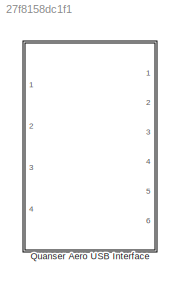
MODEL slx_27f8158dc1f1
KIND library
CONFIG AbsTol = auto
CONFIG EnableMultiTasking = on
CONFIG FixedStep = 0.002
CONFIG MaxStep = auto
CONFIG MinStep = auto
CONFIG RelTol = 1e-3
CONFIG SampleTimeConstraint = Unconstrained
CONFIG Solver = ode1
CONFIG SolverName = ode1
CONFIG StartTime = 0.0
CONFIG StopTime = inf
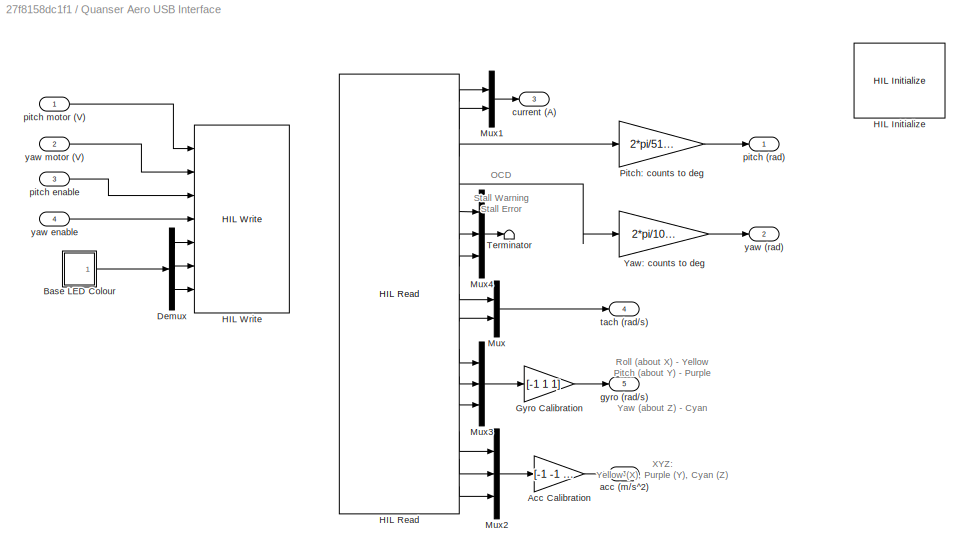
BLOCK [SubSystem] Quanser Aero USB Interface
  Ports = [4, 6]
  RequestExecContextInheritance = off
BLOCK [Gain] Quanser Aero USB Interface/Acc Calibration
  Gain = [-1 -1 1]
  OutDataTypeStr = Inherit: Inherit via internal rule
  ParamDataTypeStr = Inherit: Inherit via internal rule
  SaturateOnIntegerOverflow = off
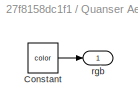
BLOCK [SubSystem] Quanser Aero USB Interface/Base LED Colour
  OpenFcn = color_constant_properties('CurrentBlock', gcbh);
  Ports = [0, 1]
  RequestExecContextInheritance = off
BLOCK [Constant] Quanser Aero USB Interface/Base LED Colour/Constant
  Value = color
BLOCK [Outport] Quanser Aero USB Interface/Base LED Colour/rgb
  IconDisplay = Port number
BLOCK [Demux] Quanser Aero USB Interface/Demux
  DisplayOption = bar
  Outputs = 3
  Ports = [1, 3]
BLOCK [Gain] Quanser Aero USB Interface/Gyro Calibration
  Gain = [-1 1 1]
  OutDataTypeStr = Inherit: Inherit via internal rule
  ParamDataTypeStr = Inherit: Inherit via internal rule
  SaturateOnIntegerOverflow = off
BLOCK [Reference] Quanser Aero USB Interface/HIL Initialize  REF=quarc_library/Data Acquisition/Generic/Configuration/HIL Initialize
  AttributesFormatString = %<object_name> (%<board_type>-%<board_number>)
  Ports = []
  Priority = -99
  SourceBlock = quarc_library/Data Acquisition/Generic/Configuration/HIL Initialize
  SourceType = HIL Initialize
  UserDataPersistent = on
BLOCK [Reference] Quanser Aero USB Interface/HIL Read  REF=quarc_library/Data Acquisition/Generic/Immediate I//O/HIL Read
  AttributesFormatString = (%<object_name>)
  Ports = [0, 15]
  SourceBlock = quarc_library/Data Acquisition/Generic/Immediate I//O/HIL Read
  SourceType = HIL Read
  UserDataPersistent = on
BLOCK [Reference] Quanser Aero USB Interface/HIL Write  REF=quarc_library/Data Acquisition/Generic/Immediate I//O/HIL Write
  AttributesFormatString = (%<object_name>)
  Ports = [7]
  SourceBlock = quarc_library/Data Acquisition/Generic/Immediate I//O/HIL Write
  SourceType = HIL Write
  UserDataPersistent = on
BLOCK [Mux] Quanser Aero USB Interface/Mux
  DisplayOption = bar
  Inputs = 2
  Ports = [2, 1]
BLOCK [Mux] Quanser Aero USB Interface/Mux1
  DisplayOption = bar
  Inputs = 2
  Ports = [2, 1]
BLOCK [Mux] Quanser Aero USB Interface/Mux2
  DisplayOption = bar
  Inputs = 3
  Ports = [3, 1]
BLOCK [Mux] Quanser Aero USB Interface/Mux3
  DisplayOption = bar
  Inputs = 3
  Ports = [3, 1]
BLOCK [Mux] Quanser Aero USB Interface/Mux4
  DisplayOption = bar
  Inputs = 3
  Ports = [3, 1]
BLOCK [Gain] Quanser Aero USB Interface/Pitch: counts to deg
  Gain = 2*pi/512/4
  OutDataTypeStr = Inherit: Inherit via internal rule
  ParamDataTypeStr = Inherit: Inherit via internal rule
  SaturateOnIntegerOverflow = off
BLOCK [Terminator] Quanser Aero USB Interface/Terminator
BLOCK [Gain] Quanser Aero USB Interface/Yaw: counts to deg
  Gain = 2*pi/1024/4
  OutDataTypeStr = Inherit: Inherit via internal rule
  ParamDataTypeStr = Inherit: Inherit via internal rule
  SaturateOnIntegerOverflow = off
BLOCK [Outport] Quanser Aero USB Interface/acc (m//s^2)
  IconDisplay = Port number
  Port = 6
BLOCK [Outport] Quanser Aero USB Interface/current (A)
  IconDisplay = Port number
  Port = 3
BLOCK [Outport] Quanser Aero USB Interface/gyro (rad//s)
  IconDisplay = Port number
  Port = 5
BLOCK [Outport] Quanser Aero USB Interface/pitch (rad)
  IconDisplay = Port number
BLOCK [Inport] Quanser Aero USB Interface/pitch enable
  IconDisplay = Port number
  Port = 3
BLOCK [Inport] Quanser Aero USB Interface/pitch motor (V)
  IconDisplay = Port number
BLOCK [Outport] Quanser Aero USB Interface/tach (rad//s)
  IconDisplay = Port number
  Port = 4
BLOCK [Outport] Quanser Aero USB Interface/yaw (rad)
  IconDisplay = Port number
  Port = 2
BLOCK [Inport] Quanser Aero USB Interface/yaw enable
  IconDisplay = Port number
  Port = 4
BLOCK [Inport] Quanser Aero USB Interface/yaw motor (V)
  IconDisplay = Port number
  Port = 2
ANNOTATION Quanser Aero USB Interface: OCD Stall Warning Stall Error
ANNOTATION Quanser Aero USB Interface: Roll (about X) - Yellow Pitch (about Y) - Purple Yaw (about Z) - Cyan
ANNOTATION Quanser Aero USB Interface: XYZ: Yellow (X), Purple (Y), Cyan (Z)
LINE Quanser Aero USB Interface/Acc Calibration:1 -> Quanser Aero USB Interface/acc (m//s^2):1
LINE Quanser Aero USB Interface/Base LED Colour:1 -> Quanser Aero USB Interface/Demux:1
LINE Quanser Aero USB Interface/Demux:1 -> Quanser Aero USB Interface/HIL Write:5
LINE Quanser Aero USB Interface/Demux:2 -> Quanser Aero USB Interface/HIL Write:6
LINE Quanser Aero USB Interface/Demux:3 -> Quanser Aero USB Interface/HIL Write:7
LINE Quanser Aero USB Interface/Gyro Calibration:1 -> Quanser Aero USB Interface/gyro (rad//s):1
LINE Quanser Aero USB Interface/HIL Read:1 -> Quanser Aero USB Interface/Mux1:1
LINE Quanser Aero USB Interface/HIL Read:10 -> Quanser Aero USB Interface/Mux3:1
LINE Quanser Aero USB Interface/HIL Read:11 -> Quanser Aero USB Interface/Mux3:2
LINE Quanser Aero USB Interface/HIL Read:12 -> Quanser Aero USB Interface/Mux3:3
LINE Quanser Aero USB Interface/HIL Read:13 -> Quanser Aero USB Interface/Mux2:1
LINE Quanser Aero USB Interface/HIL Read:14 -> Quanser Aero USB Interface/Mux2:2
LINE Quanser Aero USB Interface/HIL Read:15 -> Quanser Aero USB Interface/Mux2:3
LINE Quanser Aero USB Interface/HIL Read:2 -> Quanser Aero USB Interface/Mux1:2
LINE Quanser Aero USB Interface/HIL Read:3 -> Quanser Aero USB Interface/Pitch: counts to deg:1
LINE Quanser Aero USB Interface/HIL Read:4 -> Quanser Aero USB Interface/Yaw: counts to deg:1
LINE Quanser Aero USB Interface/HIL Read:5 -> Quanser Aero USB Interface/Mux4:1
LINE Quanser Aero USB Interface/HIL Read:6 -> Quanser Aero USB Interface/Mux4:2
LINE Quanser Aero USB Interface/HIL Read:7 -> Quanser Aero USB Interface/Mux4:3
LINE Quanser Aero USB Interface/HIL Read:8 -> Quanser Aero USB Interface/Mux:1
LINE Quanser Aero USB Interface/HIL Read:9 -> Quanser Aero USB Interface/Mux:2
LINE Quanser Aero USB Interface/Mux1:1 -> Quanser Aero USB Interface/current (A):1
LINE Quanser Aero USB Interface/Mux2:1 -> Quanser Aero USB Interface/Acc Calibration:1
LINE Quanser Aero USB Interface/Mux3:1 -> Quanser Aero USB Interface/Gyro Calibration:1
LINE Quanser Aero USB Interface/Mux4:1 -> Quanser Aero USB Interface/Terminator:1
LINE Quanser Aero USB Interface/Mux:1 -> Quanser Aero USB Interface/tach (rad//s):1
LINE Quanser Aero USB Interface/Pitch: counts to deg:1 -> Quanser Aero USB Interface/pitch (rad):1
LINE Quanser Aero USB Interface/Yaw: counts to deg:1 -> Quanser Aero USB Interface/yaw (rad):1
LINE Quanser Aero USB Interface/pitch enable:1 -> Quanser Aero USB Interface/HIL Write:3
LINE Quanser Aero USB Interface/pitch motor (V):1 -> Quanser Aero USB Interface/HIL Write:1
LINE Quanser Aero USB Interface/yaw enable:1 -> Quanser Aero USB Interface/HIL Write:4
LINE Quanser Aero USB Interface/yaw motor (V):1 -> Quanser Aero USB Interface/HIL Write:2
